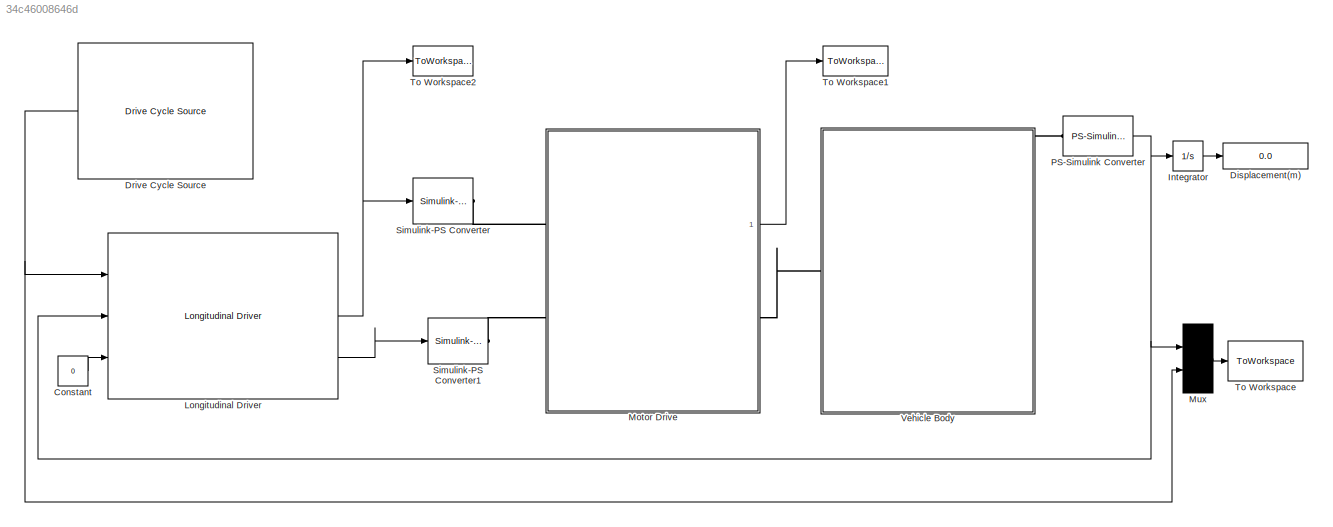
MODEL slx_34c46008646d
KIND model
CONFIG AbsTol = auto
CONFIG EnableMultiTasking = off
CONFIG FixedStep = auto
CONFIG MaxStep = auto
CONFIG MinStep = auto
CONFIG RelTol = 1e-3
CONFIG SampleTimeConstraint = Unconstrained
CONFIG Solver = VariableStepAuto
CONFIG SolverName = VariableStepAuto
CONFIG StartTime = 0
CONFIG StopTime = 200
BLOCK [Constant] Constant
  Value = 0
BLOCK [Display] Displacement(m) 
  Decimation = 1
  Ports = [1]
BLOCK [Reference] Drive Cycle Source  REF=autolibshared/Drive Cycle Source
  AttributesFormatString = %<cycleVar> (%<tfinal>)
  Ports = [0, 1]
  SourceBlock = autolibshared/Drive Cycle Source
  SourceProductBaseCode = PW
  SourceProductName = Powertrain Blockset
  SourceType = Drive Cycle Source
BLOCK [Integrator] Integrator
  InitialCondition = 1
  Ports = [1, 1]
BLOCK [Reference] Longitudinal Driver  REF=autolibshared/Longitudinal Driver
  Ports = [3, 3]
  SourceBlock = autolibshared/Longitudinal Driver
  SourceProductBaseCode = PW
  SourceProductName = Powertrain Blockset
  SourceType = Longitudinal Driver
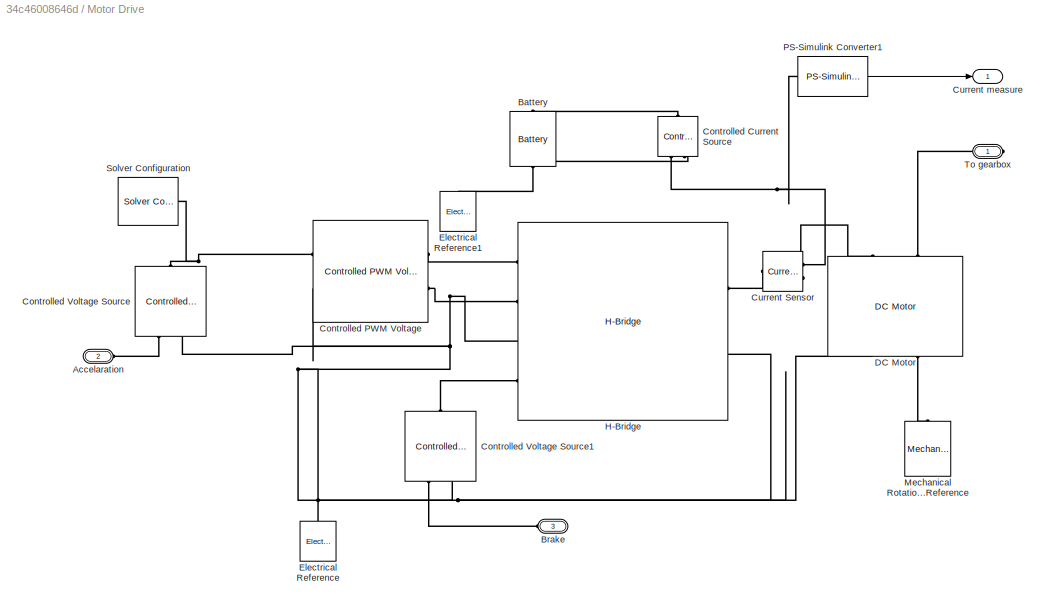
BLOCK [SubSystem] Motor Drive
  Ports = [0, 1, 0, 0, 0, 2, 1]
  RequestExecContextInheritance = off
BLOCK [PMIOPort] Motor Drive/Accelaration
  Port = 2
  Side = Left
BLOCK [Reference] Motor Drive/Battery  REF=elec_lib/Sources/Battery
  Ports = [0, 0, 0, 0, 0, 1, 1]
  SourceBlock = elec_lib/Sources/Battery
  SourceProductBaseCode = SN
  SourceProductName = Simscape Electronics
  SourceType = Battery
BLOCK [PMIOPort] Motor Drive/Brake
  Port = 3
  Side = Left
BLOCK [Reference] Motor Drive/Controlled Current Source  REF=fl_lib/Electrical/Electrical Sources/Controlled Current
Source
  Ports = [0, 0, 0, 0, 0, 1, 2]
  SourceBlock = fl_lib/Electrical/Electrical Sources/Controlled Current\nSource
  SourceProductBaseCode = SS
  SourceProductName = Simscape
  SourceType = Controlled Current\nSource
BLOCK [Reference] Motor Drive/Controlled PWM Voltage  REF=elec_lib/Actuators & Drivers/Drivers/Controlled PWM
Voltage
  Ports = [0, 0, 0, 0, 0, 2, 2]
  SourceBlock = elec_lib/Actuators & Drivers/Drivers/Controlled PWM\nVoltage
  SourceProductBaseCode = SN
  SourceProductName = Simscape Electronics
  SourceType = Controlled PWM\nVoltage
BLOCK [Reference] Motor Drive/Controlled Voltage Source  REF=fl_lib/Electrical/Electrical Sources/Controlled Voltage
Source
  Ports = [0, 0, 0, 0, 0, 1, 2]
  SourceBlock = fl_lib/Electrical/Electrical Sources/Controlled Voltage\nSource
  SourceProductBaseCode = SS
  SourceProductName = Simscape
  SourceType = Controlled Voltage\nSource
BLOCK [Reference] Motor Drive/Controlled Voltage Source1  REF=fl_lib/Electrical/Electrical Sources/Controlled Voltage
Source
  Ports = [0, 0, 0, 0, 0, 1, 2]
  SourceBlock = fl_lib/Electrical/Electrical Sources/Controlled Voltage\nSource
  SourceProductBaseCode = SS
  SourceProductName = Simscape
  SourceType = Controlled Voltage\nSource
BLOCK [Reference] Motor Drive/Current Sensor  REF=fl_lib/Electrical/Electrical Sensors/Current Sensor
  Ports = [0, 0, 0, 0, 0, 1, 2]
  SourceBlock = fl_lib/Electrical/Electrical Sensors/Current Sensor
  SourceProductBaseCode = SS
  SourceProductName = Simscape
  SourceType = Current Sensor
BLOCK [Outport] Motor Drive/Current measure 
  IconDisplay = Port number
BLOCK [Reference] Motor Drive/DC Motor  REF=elec_lib/Actuators & Drivers/Rotational Actuators/DC Motor
  Ports = [0, 0, 0, 0, 0, 2, 2]
  SourceBlock = elec_lib/Actuators & Drivers/Rotational Actuators/DC Motor
  SourceProductBaseCode = SN
  SourceProductName = Simscape Electronics
  SourceType = DC Motor
BLOCK [Reference] Motor Drive/Electrical Reference  REF=fl_lib/Electrical/Electrical Elements/Electrical Reference
  Ports = [0, 0, 0, 0, 0, 1]
  SourceBlock = fl_lib/Electrical/Electrical Elements/Electrical Reference
  SourceProductBaseCode = SS
  SourceProductName = Simscape
  SourceType = Electrical Reference
BLOCK [Reference] Motor Drive/Electrical Reference1  REF=fl_lib/Electrical/Electrical Elements/Electrical Reference
  Ports = [0, 0, 0, 0, 0, 1]
  SourceBlock = fl_lib/Electrical/Electrical Elements/Electrical Reference
  SourceProductBaseCode = SS
  SourceProductName = Simscape
  SourceType = Electrical Reference
BLOCK [Reference] Motor Drive/H-Bridge  REF=elec_lib/Actuators & Drivers/Drivers/H-Bridge
  Ports = [0, 0, 0, 0, 0, 4, 2]
  SourceBlock = elec_lib/Actuators & Drivers/Drivers/H-Bridge
  SourceProductBaseCode = SN
  SourceProductName = Simscape Electronics
  SourceType = H-Bridge
BLOCK [Reference] Motor Drive/Mechanical Rotational Reference  REF=fl_lib/Mechanical/Rotational Elements/Mechanical
Rotational Reference
  Ports = [0, 0, 0, 0, 0, 1]
  SourceBlock = fl_lib/Mechanical/Rotational Elements/Mechanical\nRotational Reference
  SourceProductBaseCode = SS
  SourceProductName = Simscape
  SourceType = Mechanical\nRotational Reference
BLOCK [Reference] Motor Drive/PS-Simulink Converter1  REF=nesl_utility/PS-Simulink
Converter
  Ports = [0, 1, 0, 0, 0, 1]
  SourceBlock = nesl_utility/PS-Simulink\nConverter
  SourceProductBaseCode = SS
  SourceProductName = Simscape
  SourceType = PS-Simulink\nConverter
BLOCK [Reference] Motor Drive/Solver Configuration  REF=nesl_utility/Solver
Configuration
  Ports = [0, 0, 0, 0, 0, 0, 1]
  SourceBlock = nesl_utility/Solver\nConfiguration
  SourceProductBaseCode = SS
  SourceProductName = Simscape
  SourceType = Solver\nConfiguration
BLOCK [PMIOPort] Motor Drive/To gearbox 
  Side = Right
BLOCK [Mux] Mux
  DisplayOption = bar
  Inputs = 2
  Ports = [2, 1]
BLOCK [Reference] PS-Simulink Converter  REF=nesl_utility/PS-Simulink
Converter
  Ports = [0, 1, 0, 0, 0, 1]
  SourceBlock = nesl_utility/PS-Simulink\nConverter
  SourceProductBaseCode = SS
  SourceProductName = Simscape
  SourceType = PS-Simulink\nConverter
BLOCK [Reference] Simulink-PS Converter  REF=nesl_utility/Simulink-PS
Converter
  Ports = [1, 0, 0, 0, 0, 0, 1]
  SourceBlock = nesl_utility/Simulink-PS\nConverter
  SourceProductBaseCode = SS
  SourceProductName = Simscape
  SourceType = Simulink-PS\nConverter
BLOCK [Reference] Simulink-PS Converter1  REF=nesl_utility/Simulink-PS
Converter
  Ports = [1, 0, 0, 0, 0, 0, 1]
  SourceBlock = nesl_utility/Simulink-PS\nConverter
  SourceProductBaseCode = SS
  SourceProductName = Simscape
  SourceType = Simulink-PS\nConverter
BLOCK [ToWorkspace] To Workspace
  FixptAsFi = on
  MaxDataPoints = inf
  Ports = [1]
  SampleTime = -1
  Save2DSignal = 3-D array (concatenate along third dimension)
  SaveFormat = Timeseries
  VariableName = Speed
BLOCK [ToWorkspace] To Workspace1
  FixptAsFi = on
  MaxDataPoints = inf
  Ports = [1]
  SampleTime = -1
  Save2DSignal = 3-D array (concatenate along third dimension)
  SaveFormat = Timeseries
  VariableName = CurrentMeasure
BLOCK [ToWorkspace] To Workspace2
  FixptAsFi = on
  MaxDataPoints = inf
  Ports = [1]
  SampleTime = -1
  Save2DSignal = 3-D array (concatenate along third dimension)
  SaveFormat = Timeseries
  VariableName = AccPad
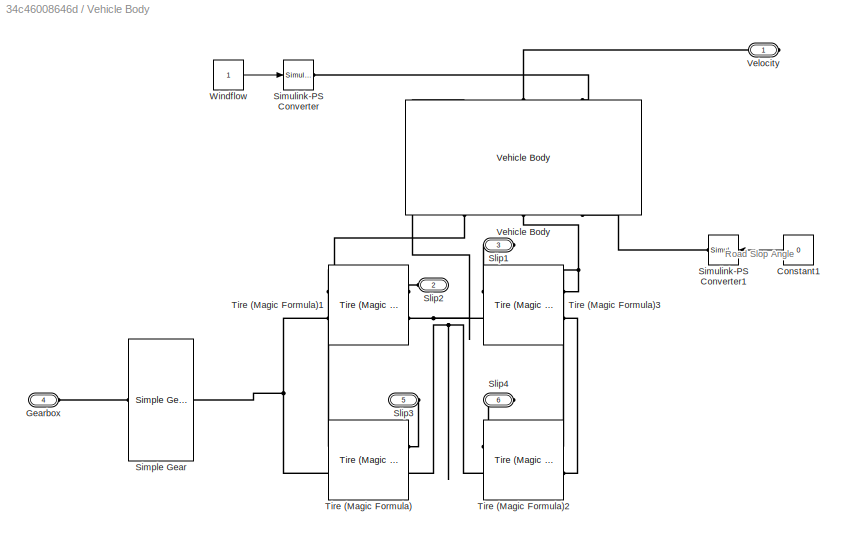
BLOCK [SubSystem] Vehicle Body 
  Ports = [0, 0, 0, 0, 0, 3, 3]
  RequestExecContextInheritance = off
BLOCK [Constant] Vehicle Body /Constant1
  Value = 0
BLOCK [PMIOPort] Vehicle Body /Gearbox 
  Port = 4
  Side = Left
BLOCK [Reference] Vehicle Body /Simple Gear  REF=sdl_lib/Gears/Simple Gear
  Ports = [0, 0, 0, 0, 0, 1, 1]
  SourceBlock = sdl_lib/Gears/Simple Gear
  SourceProductBaseCode = LD
  SourceProductName = Simscape Driveline
  SourceType = Simple Gear
BLOCK [Reference] Vehicle Body /Simulink-PS Converter  REF=nesl_utility/Simulink-PS
Converter
  Ports = [1, 0, 0, 0, 0, 0, 1]
  SourceBlock = nesl_utility/Simulink-PS\nConverter
  SourceProductBaseCode = SS
  SourceProductName = Simscape
  SourceType = Simulink-PS\nConverter
BLOCK [Reference] Vehicle Body /Simulink-PS Converter1  REF=nesl_utility/Simulink-PS
Converter
  Ports = [1, 0, 0, 0, 0, 0, 1]
  SourceBlock = nesl_utility/Simulink-PS\nConverter
  SourceProductBaseCode = SS
  SourceProductName = Simscape
  SourceType = Simulink-PS\nConverter
BLOCK [PMIOPort] Vehicle Body /Slip1
  Port = 3
  Side = Right
BLOCK [PMIOPort] Vehicle Body /Slip2
  Port = 2
  Side = Left
BLOCK [PMIOPort] Vehicle Body /Slip3
  Port = 5
  Side = Left
BLOCK [PMIOPort] Vehicle Body /Slip4
  Port = 6
  Side = Right
BLOCK [Reference] Vehicle Body /Tire (Magic Formula)  REF=sdl_lib/Tires & Vehicles/Tire (Magic Formula)
  Ports = [0, 0, 0, 0, 0, 2, 2]
  SourceBlock = sdl_lib/Tires & Vehicles/Tire (Magic Formula)
  SourceProductBaseCode = LD
  SourceProductName = Simscape Driveline
  SourceType = Tire (Magic Formula)
BLOCK [Reference] Vehicle Body /Tire (Magic Formula)1  REF=sdl_lib/Tires & Vehicles/Tire (Magic Formula)
  Ports = [0, 0, 0, 0, 0, 2, 2]
  SourceBlock = sdl_lib/Tires & Vehicles/Tire (Magic Formula)
  SourceProductBaseCode = LD
  SourceProductName = Simscape Driveline
  SourceType = Tire (Magic Formula)
BLOCK [Reference] Vehicle Body /Tire (Magic Formula)2  REF=sdl_lib/Tires & Vehicles/Tire (Magic Formula)
  Ports = [0, 0, 0, 0, 0, 2, 2]
  SourceBlock = sdl_lib/Tires & Vehicles/Tire (Magic Formula)
  SourceProductBaseCode = LD
  SourceProductName = Simscape Driveline
  SourceType = Tire (Magic Formula)
BLOCK [Reference] Vehicle Body /Tire (Magic Formula)3  REF=sdl_lib/Tires & Vehicles/Tire (Magic Formula)
  Ports = [0, 0, 0, 0, 0, 2, 2]
  SourceBlock = sdl_lib/Tires & Vehicles/Tire (Magic Formula)
  SourceProductBaseCode = LD
  SourceProductName = Simscape Driveline
  SourceType = Tire (Magic Formula)
BLOCK [Reference] Vehicle Body /Vehicle Body  REF=sdl_lib/Tires & Vehicles/Vehicle Body
  Ports = [0, 0, 0, 0, 0, 3, 3]
  SourceBlock = sdl_lib/Tires & Vehicles/Vehicle Body
  SourceProductBaseCode = LD
  SourceProductName = Simscape Driveline
  SourceType = Vehicle Body
BLOCK [PMIOPort] Vehicle Body /Velocity
  Side = Right
BLOCK [Constant] Vehicle Body /Windflow 
ANNOTATION Vehicle Body : Road Slop Angle
LINE Constant:1 -> Longitudinal Driver:3
NET Drive Cycle Source:1 -> Longitudinal Driver:1, Mux:2
LINE Integrator:1 -> Displacement(m) :1
NET Longitudinal Driver:2 -> Simulink-PS Converter:1, To Workspace2:1
LINE Longitudinal Driver:3 -> Simulink-PS Converter1:1
LINE Motor Drive/PS-Simulink Converter1:1 -> Motor Drive/Current measure :1
LINE Motor Drive:1 -> To Workspace1:1
LINE Mux:1 -> To Workspace:1
NET PS-Simulink Converter:1 -> Integrator:1, Longitudinal Driver:2, Mux:1
LINE Vehicle Body /Constant1:1 -> Vehicle Body /Simulink-PS Converter1:1
LINE Vehicle Body /Windflow :1 -> Vehicle Body /Simulink-PS Converter:1
PLINE Motor Drive/Accelaration:RConn1 -- Motor Drive/Controlled Voltage Source:RConn1
PLINE Motor Drive/Battery:LConn1 -- Motor Drive/Controlled Current Source:LConn1
PNET net1: Motor Drive/Battery:RConn1 -- Motor Drive/Controlled Current Source:RConn2 -- Motor Drive/Electrical Reference1:LConn1
PLINE Motor Drive/Brake:RConn1 -- Motor Drive/Controlled Voltage Source1:RConn1
PNET net2: Motor Drive/Controlled Current Source:RConn1 -- Motor Drive/Current Sensor:RConn1 -- Motor Drive/PS-Simulink Converter1:LConn1
PNET net3: Motor Drive/Controlled PWM Voltage:LConn1 -- Motor Drive/Controlled Voltage Source:LConn1 -- Motor Drive/Solver Configuration:RConn1
PNET net4: Motor Drive/Controlled PWM Voltage:LConn2 -- Motor Drive/Controlled PWM Voltage:RConn2 -- Motor Drive/Controlled Voltage Source1:RConn2 -- Motor Drive/Controlled Voltage Source:RConn2 -- Motor Drive/DC Motor:RConn1 -- Motor Drive/Electrical Reference:LConn1 -- Motor Drive/H-Bridge:LConn2 -- Motor Drive/H-Bridge:LConn3 -- Motor Drive/H-Bridge:RConn2
PLINE Motor Drive/Controlled PWM Voltage:RConn1 -- Motor Drive/H-Bridge:LConn1
PLINE Motor Drive/Controlled Voltage Source1:LConn1 -- Motor Drive/H-Bridge:LConn4
PLINE Motor Drive/Current Sensor:LConn1 -- Motor Drive/H-Bridge:RConn1
PLINE Motor Drive/Current Sensor:RConn2 -- Motor Drive/DC Motor:LConn1
PLINE Motor Drive/DC Motor:LConn2 -- Motor Drive/To gearbox :RConn1
PLINE Motor Drive/DC Motor:RConn2 -- Motor Drive/Mechanical Rotational Reference:LConn1
PLINE Motor Drive:LConn1 -- Simulink-PS Converter:RConn1
PLINE Motor Drive:LConn2 -- Simulink-PS Converter1:RConn1
PLINE Motor Drive:RConn1 -- Vehicle Body :LConn2
PLINE PS-Simulink Converter:LConn1 -- Vehicle Body :RConn1
PLINE Vehicle Body /Gearbox :RConn1 -- Vehicle Body /Simple Gear:LConn1
PNET net5: Vehicle Body /Simple Gear:RConn1 -- Vehicle Body /Tire (Magic Formula)1:LConn2 -- Vehicle Body /Tire (Magic Formula):LConn2
PLINE Vehicle Body /Simulink-PS Converter1:RConn1 -- Vehicle Body /Vehicle Body:RConn3
PLINE Vehicle Body /Simulink-PS Converter:RConn1 -- Vehicle Body /Vehicle Body:LConn3
PLINE Vehicle Body /Slip1:RConn1 -- Vehicle Body /Tire (Magic Formula)3:RConn1
PLINE Vehicle Body /Slip2:RConn1 -- Vehicle Body /Tire (Magic Formula)1:RConn1
PLINE Vehicle Body /Slip3:RConn1 -- Vehicle Body /Tire (Magic Formula):RConn1
PLINE Vehicle Body /Slip4:RConn1 -- Vehicle Body /Tire (Magic Formula)2:RConn1
PNET net6: Vehicle Body /Tire (Magic Formula)1:LConn1 -- Vehicle Body /Tire (Magic Formula):LConn1 -- Vehicle Body /Vehicle Body:RConn1
PNET net7: Vehicle Body /Tire (Magic Formula)1:RConn2 -- Vehicle Body /Tire (Magic Formula)2:RConn2 -- Vehicle Body /Tire (Magic Formula)3:RConn2 -- Vehicle Body /Tire (Magic Formula):RConn2 -- Vehicle Body /Vehicle Body:LConn1
PNET net8: Vehicle Body /Tire (Magic Formula)2:LConn1 -- Vehicle Body /Tire (Magic Formula)3:LConn1 -- Vehicle Body /Vehicle Body:RConn2
PLINE Vehicle Body /Tire (Magic Formula)2:LConn2 -- Vehicle Body /Tire (Magic Formula)3:LConn2
PLINE Vehicle Body /Vehicle Body:LConn2 -- Vehicle Body /Velocity:RConn1
note: NET lines group one-source signal fan-out (src -> all destinations, sorted); 1:1 wires keep LINE; PNET lines group multi-terminal physical nets as a canonical sorted terminal list (undirected conserving connections); 2-terminal nets keep the pairwise PLINE form
